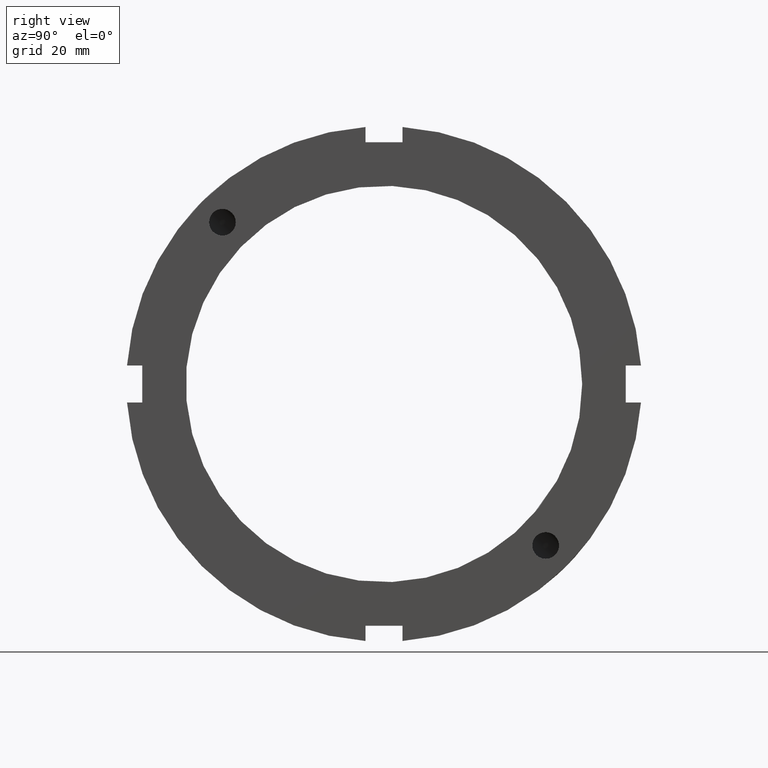
[diagram: clean part render]
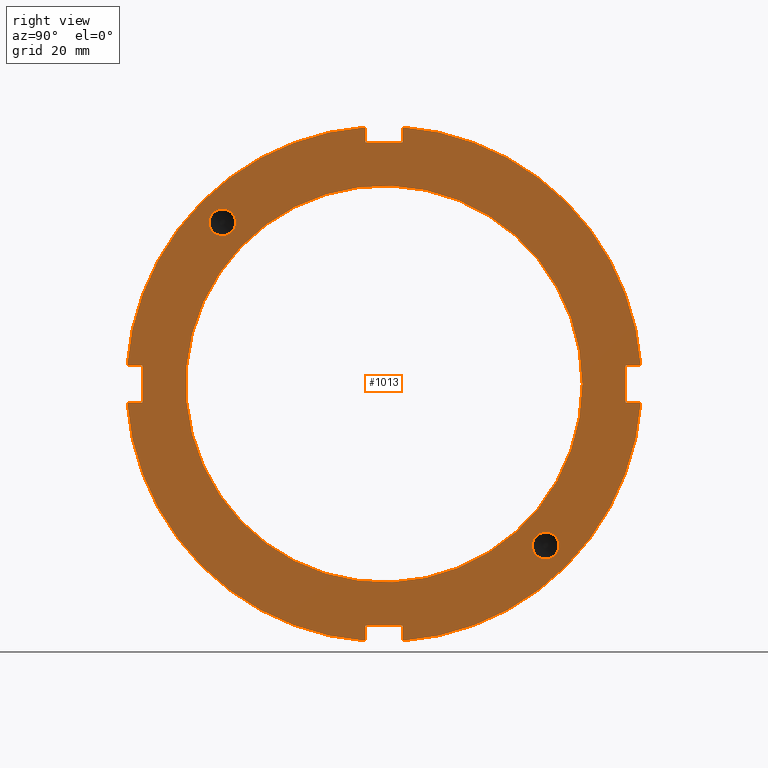
[diagram: same view with one face highlighted and labeled with its STEP entity id]
A machine part, right view. The second image highlights one B-rep face of the part: STEP entity #1013.
In plain terms, the highlighted planar face has unit normal (1, 0, 0).
Its self-contained STEP definition (entity closure, byte-faithful):
#73=CARTESIAN_POINT('',(30.999999999999979,-66.21773657263634,61.164736572636365));
#74=VERTEX_POINT('',#73);
#75=CARTESIAN_POINT('',(30.999999999999979,-61.164736572636336,61.164736572636365));
#76=DIRECTION('',(-1.0,0.0,0.0));
#77=DIRECTION('',(0.0,-1.0,0.0));
#78=AXIS2_PLACEMENT_3D('',#75,#76,#77);
#79=CIRCLE('',#78,5.053);
#80=EDGE_CURVE('',#74,#74,#79,.T.);
#422=CARTESIAN_POINT('',(30.999999999999979,61.164736572636343,-66.217736572636355));
#423=VERTEX_POINT('',#422);
#424=CARTESIAN_POINT('',(30.999999999999979,61.164736572636343,-61.164736572636357));
#425=DIRECTION('',(-1.0,0.0,0.0));
#426=DIRECTION('',(0.0,0.0,-1.0));
#427=AXIS2_PLACEMENT_3D('',#424,#425,#426);
#428=CIRCLE('',#427,5.053);
#429=EDGE_CURVE('',#423,#423,#428,.T.);
#543=CARTESIAN_POINT('',(30.999999999999979,-7.000000000000012,-91.5));
#544=VERTEX_POINT('',#543);
#551=CARTESIAN_POINT('',(30.999999999999979,-7.000000000000012,-97.248393302923006));
#552=VERTEX_POINT('',#551);
#553=CARTESIAN_POINT('',(30.999999999999979,-7.000000000000012,-97.248393302923006));
#554=DIRECTION('',(0.0,0.0,1.0));
#555=VECTOR('',#554,5.748393302923006);
#556=LINE('',#553,#555);
#557=EDGE_CURVE('',#552,#544,#556,.T.);
#583=CARTESIAN_POINT('',(30.999999999999979,6.999999999999977,-97.248393302923006));
#584=VERTEX_POINT('',#583);
#591=CARTESIAN_POINT('',(30.999999999999979,6.999999999999979,-91.5));
#592=VERTEX_POINT('',#591);
#593=CARTESIAN_POINT('',(30.999999999999979,6.999999999999976,-91.5));
#594=DIRECTION('',(0.0,0.0,-1.0));
#595=VECTOR('',#594,5.748393302923006);
#596=LINE('',#593,#595);
#597=EDGE_CURVE('',#592,#584,#596,.T.);
#620=CARTESIAN_POINT('',(30.999999999999979,-7.000000000000007,-91.500000000000014));
#621=DIRECTION('',(0.0,1.0,0.0));
#622=VECTOR('',#621,13.999999999999986);
#623=LINE('',#620,#622);
#624=EDGE_CURVE('',#544,#592,#623,.T.);
#645=CARTESIAN_POINT('',(30.999999999999979,-91.5,7.000000000000006));
#646=VERTEX_POINT('',#645);
#653=CARTESIAN_POINT('',(30.999999999999979,-97.248393302923006,7.000000000000006));
#654=VERTEX_POINT('',#653);
#655=CARTESIAN_POINT('',(30.999999999999979,-97.24839330292302,7.000000000000006));
#656=DIRECTION('',(0.0,1.0,0.0));
#657=VECTOR('',#656,5.748393302923006);
#658=LINE('',#655,#657);
#659=EDGE_CURVE('',#654,#646,#658,.T.);
#685=CARTESIAN_POINT('',(30.999999999999979,-97.248393302923006,-6.999999999999984));
#686=VERTEX_POINT('',#685);
#693=CARTESIAN_POINT('',(30.999999999999979,-91.5,-6.999999999999984));
#694=VERTEX_POINT('',#693);
#695=CARTESIAN_POINT('',(30.999999999999979,-91.5,-6.999999999999984));
#696=DIRECTION('',(0.0,-1.0,0.0));
#697=VECTOR('',#696,5.748393302923006);
#698=LINE('',#695,#697);
#699=EDGE_CURVE('',#694,#686,#698,.T.);
#722=CARTESIAN_POINT('',(30.999999999999979,-91.499999999999986,7.000000000000007));
#723=DIRECTION('',(0.0,0.0,-1.0));
#724=VECTOR('',#723,13.999999999999991);
#725=LINE('',#722,#724);
#726=EDGE_CURVE('',#646,#694,#725,.T.);
#747=CARTESIAN_POINT('',(30.999999999999979,7.000000000000001,91.5));
#748=VERTEX_POINT('',#747);
#755=CARTESIAN_POINT('',(30.999999999999979,7.000000000000001,97.248393302923006));
#756=VERTEX_POINT('',#755);
#757=CARTESIAN_POINT('',(30.999999999999979,6.999999999999996,97.248393302923006));
#758=DIRECTION('',(0.0,0.0,-1.0));
#759=VECTOR('',#758,5.748393302923006);
#760=LINE('',#757,#759);
#761=EDGE_CURVE('',#756,#748,#760,.T.);
#787=CARTESIAN_POINT('',(30.999999999999979,-6.999999999999989,97.248393302923006));
#788=VERTEX_POINT('',#787);
#795=CARTESIAN_POINT('',(30.999999999999979,-6.999999999999989,91.5));
#796=VERTEX_POINT('',#795);
#797=CARTESIAN_POINT('',(30.999999999999979,-6.99999999999999,91.5));
#798=DIRECTION('',(0.0,0.0,1.0));
#799=VECTOR('',#798,5.748393302923006);
#800=LINE('',#797,#799);
#801=EDGE_CURVE('',#796,#788,#800,.T.);
#824=CARTESIAN_POINT('',(30.999999999999979,7.0,91.5));
#825=DIRECTION('',(0.0,-1.0,0.0));
#826=VECTOR('',#825,13.999999999999993);
#827=LINE('',#824,#826);
#828=EDGE_CURVE('',#748,#796,#827,.T.);
#840=CARTESIAN_POINT('',(30.999999999999979,97.248393302923006,6.999999999999995));
#841=VERTEX_POINT('',#840);
#842=CARTESIAN_POINT('',(30.999999999999979,0.0,0.0));
#843=DIRECTION('',(1.0,0.0,0.0));
#844=DIRECTION('',(0.0,1.0,0.0));
#845=AXIS2_PLACEMENT_3D('',#842,#843,#844);
#846=CIRCLE('',#845,97.5);
#847=EDGE_CURVE('',#841,#756,#846,.T.);
#873=CARTESIAN_POINT('',(30.999999999999979,0.0,0.0));
#874=DIRECTION('',(1.0,0.0,0.0));
#875=DIRECTION('',(0.0,1.0,0.0));
#876=AXIS2_PLACEMENT_3D('',#873,#874,#875);
#877=CIRCLE('',#876,97.5);
#878=EDGE_CURVE('',#788,#654,#877,.T.);
#909=CARTESIAN_POINT('',(30.999999999999979,97.248393302923006,-6.999999999999995));
#910=VERTEX_POINT('',#909);
#917=CARTESIAN_POINT('',(30.999999999999979,0.0,0.0));
#918=DIRECTION('',(1.0,0.0,0.0));
#919=DIRECTION('',(0.0,1.0,0.0));
#920=AXIS2_PLACEMENT_3D('',#917,#918,#919);
#921=CIRCLE('',#920,97.5);
#922=EDGE_CURVE('',#584,#910,#921,.T.);
#936=CARTESIAN_POINT('',(30.999999999999979,0.0,0.0));
#937=DIRECTION('',(1.0,0.0,0.0));
#938=DIRECTION('',(0.0,1.0,0.0));
#939=AXIS2_PLACEMENT_3D('',#936,#937,#938);
#940=CIRCLE('',#939,97.5);
#941=EDGE_CURVE('',#686,#552,#940,.T.);
#954=CARTESIAN_POINT('',(30.999999999999979,86.25,0.0));
#955=DIRECTION('',(1.0,0.0,0.0));
#956=DIRECTION('',(0.0,0.0,-1.0));
#957=AXIS2_PLACEMENT_3D('',#954,#955,#956);
#958=PLANE('',#957);
#959=ORIENTED_EDGE('',*,*,#557,.T.);
#960=ORIENTED_EDGE('',*,*,#624,.T.);
#961=ORIENTED_EDGE('',*,*,#597,.T.);
#962=ORIENTED_EDGE('',*,*,#922,.T.);
#963=CARTESIAN_POINT('',(30.999999999999979,91.5,-6.999999999999995));
#964=VERTEX_POINT('',#963);
#965=CARTESIAN_POINT('',(30.999999999999979,97.24839330292302,-6.999999999999995));
#966=DIRECTION('',(0.0,-1.0,0.0));
#967=VECTOR('',#966,5.748393302923006);
#968=LINE('',#965,#967);
#969=EDGE_CURVE('',#910,#964,#968,.T.);
#970=ORIENTED_EDGE('',*,*,#969,.T.);
#971=CARTESIAN_POINT('',(30.999999999999979,91.5,6.999999999999995));
#972=VERTEX_POINT('',#971);
#973=CARTESIAN_POINT('',(30.999999999999979,91.499999999999986,-6.999999999999996));
#974=DIRECTION('',(0.0,0.0,1.0));
#975=VECTOR('',#974,13.999999999999989);
#976=LINE('',#973,#975);
#977=EDGE_CURVE('',#964,#972,#976,.T.);
#978=ORIENTED_EDGE('',*,*,#977,.T.);
#979=CARTESIAN_POINT('',(30.999999999999979,91.5,6.999999999999995));
#980=DIRECTION('',(0.0,1.0,0.0));
#981=VECTOR('',#980,5.748393302923006);
#982=LINE('',#979,#981);
#983=EDGE_CURVE('',#972,#841,#982,.T.);
#984=ORIENTED_EDGE('',*,*,#983,.T.);
#985=ORIENTED_EDGE('',*,*,#847,.T.);
#986=ORIENTED_EDGE('',*,*,#761,.T.);
#987=ORIENTED_EDGE('',*,*,#828,.T.);
#988=ORIENTED_EDGE('',*,*,#801,.T.);
#989=ORIENTED_EDGE('',*,*,#878,.T.);
#990=ORIENTED_EDGE('',*,*,#659,.T.);
#991=ORIENTED_EDGE('',*,*,#726,.T.);
#992=ORIENTED_EDGE('',*,*,#699,.T.);
#993=ORIENTED_EDGE('',*,*,#941,.T.);
#994=EDGE_LOOP('',(#959,#960,#961,#962,#970,#978,#984,#985,#986,#987,#988,#989,#990,#991,#992,#993));
#995=FACE_OUTER_BOUND('',#994,.T.);
#996=ORIENTED_EDGE('',*,*,#80,.T.);
#997=EDGE_LOOP('',(#996));
#998=FACE_BOUND('',#997,.T.);
#999=ORIENTED_EDGE('',*,*,#429,.T.);
#1000=EDGE_LOOP('',(#999));
#1001=FACE_BOUND('',#1000,.T.);
#1002=CARTESIAN_POINT('',(30.999999999999982,75.0,0.0));
#1003=VERTEX_POINT('',#1002);
#1004=CARTESIAN_POINT('',(30.999999999999982,0.0,0.0));
#1005=DIRECTION('',(1.0,0.0,0.0));
#1006=DIRECTION('',(0.0,1.0,0.0));
#1007=AXIS2_PLACEMENT_3D('',#1004,#1005,#1006);
#1008=CIRCLE('',#1007,75.0);
#1009=EDGE_CURVE('',#1003,#1003,#1008,.T.);
#1010=ORIENTED_EDGE('',*,*,#1009,.F.);
#1011=EDGE_LOOP('',(#1010));
#1012=FACE_BOUND('',#1011,.T.);
#1013=ADVANCED_FACE('',(#995,#998,#1001,#1012),#958,.T.);